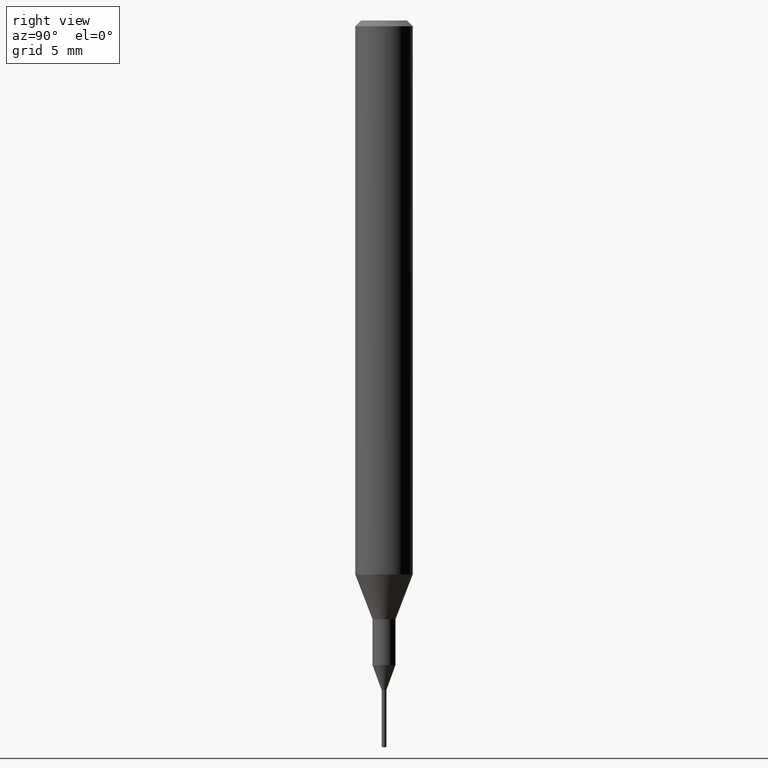
[diagram: clean part render]
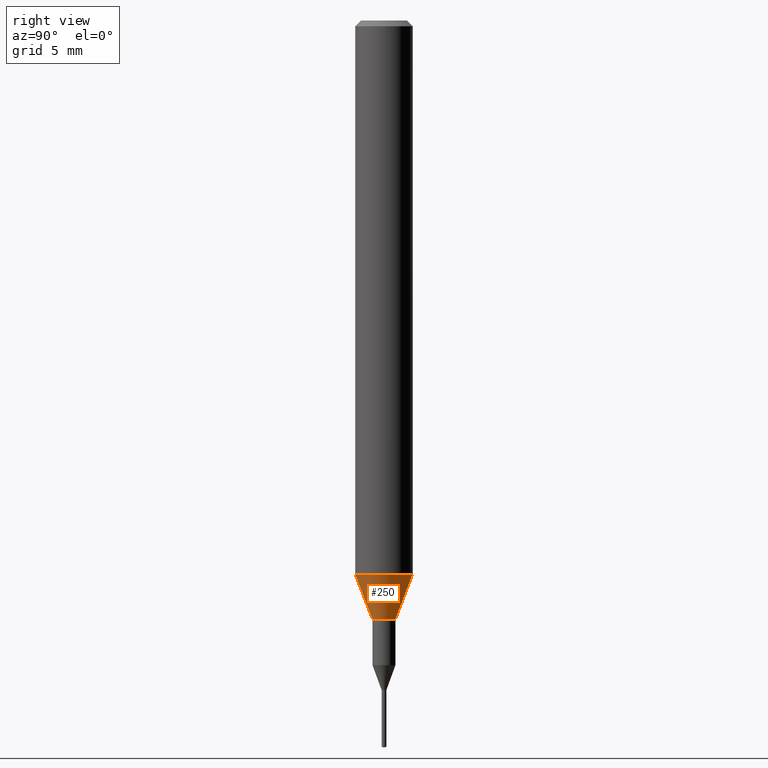
[diagram: same view with one face highlighted and labeled with its STEP entity id]
A machine part, right view. The second image highlights one B-rep face of the part: STEP entity #250.
In plain terms, the highlighted conical surface has half-angle 20.997 deg.
Its self-contained STEP definition (entity closure, byte-faithful):
#128=EDGE_CURVE('',#192,#202,#309,.T.);
#130=EDGE_CURVE('',#190,#252,#311,.T.);
#142=EDGE_CURVE('',#252,#202,#323,.T.);
#190=VERTEX_POINT('',#376);
#192=VERTEX_POINT('',#378);
#200=EDGE_CURVE('',#192,#190,#387,.T.);
#202=VERTEX_POINT('',#389);
#250=ADVANCED_FACE('',(#443),#444,.T.);
#252=VERTEX_POINT('',#446);
#309=CIRCLE('',#505,1.5);
#311=CIRCLE('',#508,0.6);
#323=LINE('',#526,#527);
#376=CARTESIAN_POINT('',(0.0,0.6,-31.3));
#378=CARTESIAN_POINT('',(0.0,1.5,-28.955));
#387=LINE('',#605,#606);
#389=CARTESIAN_POINT('',(1.83690953073357E-016,-1.5,-28.955));
#443=FACE_OUTER_BOUND('',#677,.T.);
#444=CONICAL_SURFACE('',#678,1.05,0.366459241971866);
#446=CARTESIAN_POINT('',(7.34763812293426E-017,-0.6,-31.3));
#505=AXIS2_PLACEMENT_3D('',#744,#745,#746);
#508=AXIS2_PLACEMENT_3D('',#747,#748,#749);
#526=CARTESIAN_POINT('',(1.2858366715135E-016,-1.05,-30.1275));
#527=VECTOR('',#760,1.0);
#605=CARTESIAN_POINT('',(-1.2858366715135E-016,1.05,-30.1275));
#606=VECTOR('',#835,1.0);
#677=EDGE_LOOP('',(#892,#893,#894,#895));
#678=AXIS2_PLACEMENT_3D('',#896,#897,#898);
#744=CARTESIAN_POINT('',(0.0,0.0,-28.955));
#745=DIRECTION('',(0.0,0.0,-1.0));
#746=DIRECTION('',(0.0,1.0,0.0));
#747=CARTESIAN_POINT('',(0.0,0.0,-31.3));
#748=DIRECTION('',(0.0,0.0,-1.0));
#749=DIRECTION('',(0.0,1.0,0.0));
#760=DIRECTION('',(4.38791184365088E-017,-0.358312026550805,0.93360189140182));
#835=DIRECTION('',(4.38791184365088E-017,-0.358312026550805,-0.93360189140182));
#892=ORIENTED_EDGE('',*,*,#200,.F.);
#893=ORIENTED_EDGE('',*,*,#128,.T.);
#894=ORIENTED_EDGE('',*,*,#142,.F.);
#895=ORIENTED_EDGE('',*,*,#130,.F.);
#896=CARTESIAN_POINT('',(0.0,0.0,-30.1275));
#897=DIRECTION('',(-0.0,-0.0,1.0));
#898=DIRECTION('',(0.0,1.0,0.0));